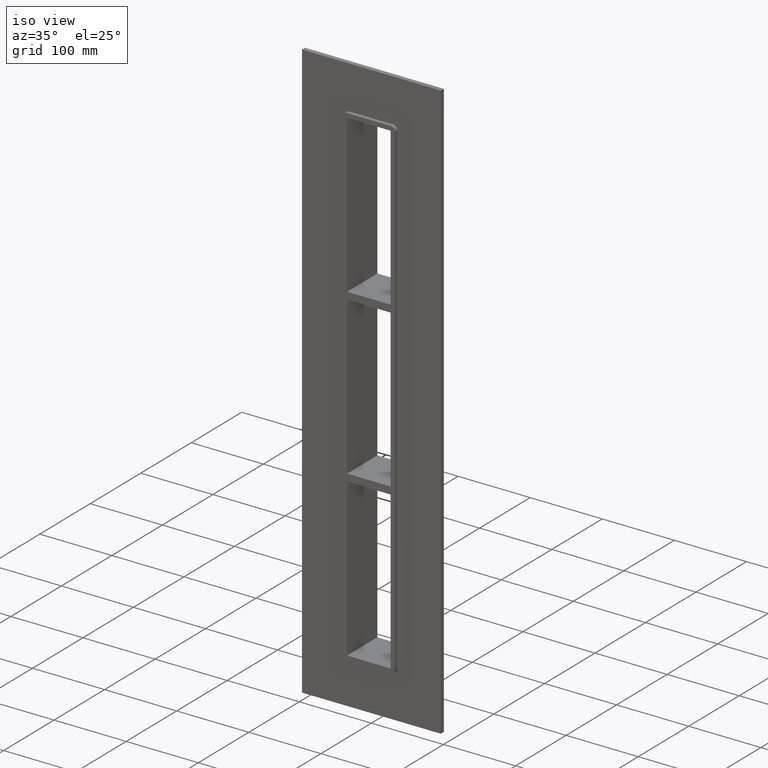
[diagram: clean part render]
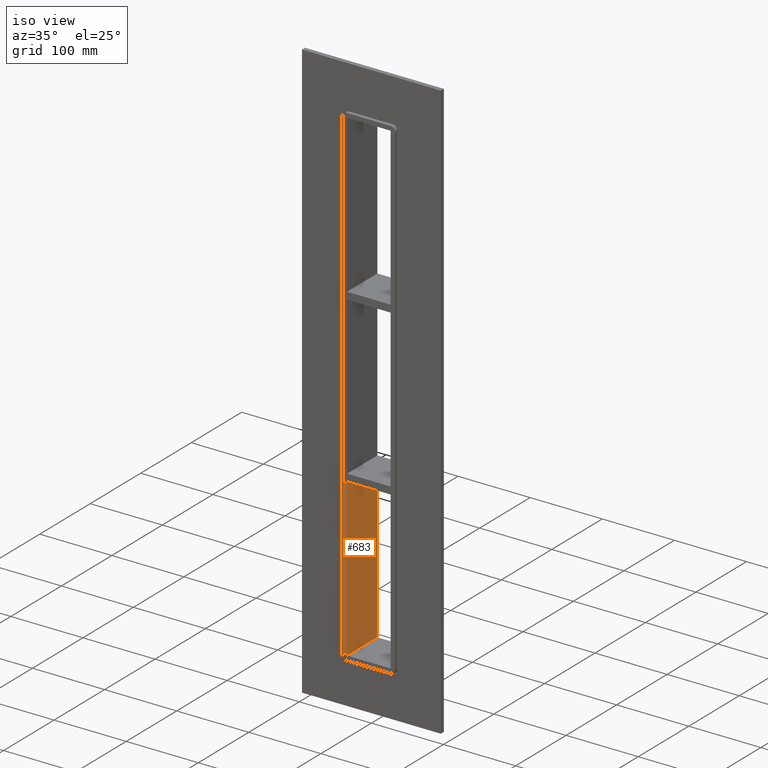
[diagram: same view with one face highlighted and labeled with its STEP entity id]
A machine part, iso view. The second image highlights one B-rep face of the part: STEP entity #683.
In plain terms, the highlighted planar face has unit normal (-1, 0, 0).
Its self-contained STEP definition (entity closure, byte-faithful):
#248=CARTESIAN_POINT('',(-30.250000000001798,-5.0,-118.99999999999977));
#249=VERTEX_POINT('',#248);
#256=CARTESIAN_POINT('',(-30.250000000001798,55.0,-118.99999999999977));
#257=VERTEX_POINT('',#256);
#258=CARTESIAN_POINT('',(-30.250000000000021,55.0,-118.99999999999977));
#259=DIRECTION('',(0.0,-1.0,0.0));
#260=VECTOR('',#259,60.0);
#261=LINE('',#258,#260);
#262=EDGE_CURVE('',#257,#249,#261,.T.);
#653=CARTESIAN_POINT('',(-30.250000000000021,0.0,-337.0));
#654=DIRECTION('',(-1.0,0.0,0.0));
#655=DIRECTION('',(0.0,0.0,1.0));
#656=AXIS2_PLACEMENT_3D('',#653,#654,#655);
#657=PLANE('',#656);
#658=ORIENTED_EDGE('',*,*,#262,.T.);
#659=CARTESIAN_POINT('',(-30.250000000000021,-5.0,-337.0));
#660=VERTEX_POINT('',#659);
#661=CARTESIAN_POINT('',(-30.250000000000021,-5.0,-337.0));
#662=DIRECTION('',(0.0,0.0,1.0));
#663=VECTOR('',#662,218.00000000000023);
#664=LINE('',#661,#663);
#665=EDGE_CURVE('',#660,#249,#664,.T.);
#666=ORIENTED_EDGE('',*,*,#665,.F.);
#667=CARTESIAN_POINT('',(-30.250000000000021,55.0,-337.0));
#668=VERTEX_POINT('',#667);
#669=CARTESIAN_POINT('',(-30.250000000000021,-5.0,-337.0));
#670=DIRECTION('',(0.0,1.0,0.0));
#671=VECTOR('',#670,60.0);
#672=LINE('',#669,#671);
#673=EDGE_CURVE('',#660,#668,#672,.T.);
#674=ORIENTED_EDGE('',*,*,#673,.T.);
#675=CARTESIAN_POINT('',(-30.250000000000021,55.0,-118.99999999999977));
#676=DIRECTION('',(0.0,0.0,-1.0));
#677=VECTOR('',#676,218.00000000000023);
#678=LINE('',#675,#677);
#679=EDGE_CURVE('',#257,#668,#678,.T.);
#680=ORIENTED_EDGE('',*,*,#679,.F.);
#681=EDGE_LOOP('',(#658,#666,#674,#680));
#682=FACE_OUTER_BOUND('',#681,.T.);
#683=ADVANCED_FACE('',(#682),#657,.F.);